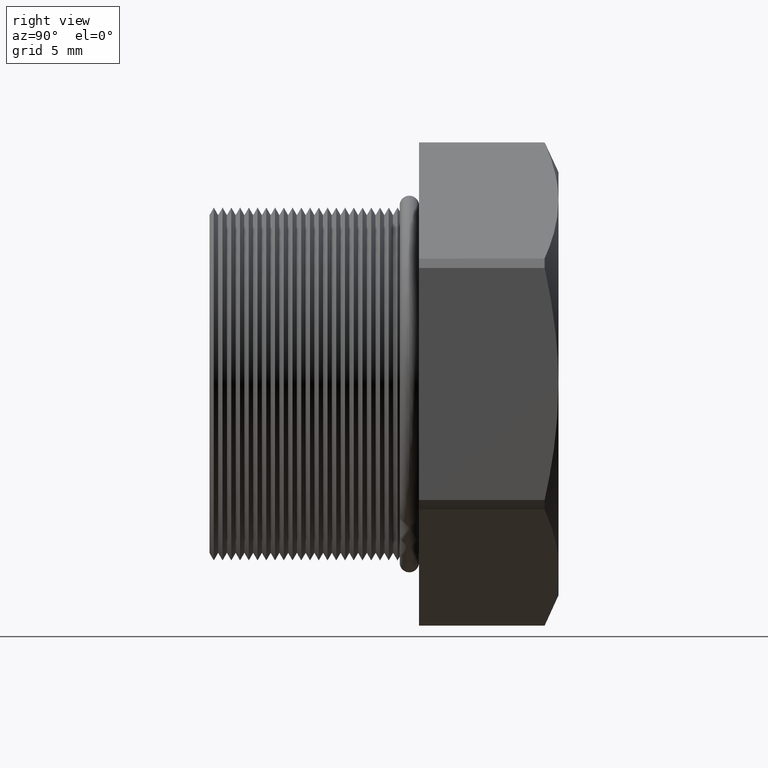
[diagram: clean part render]
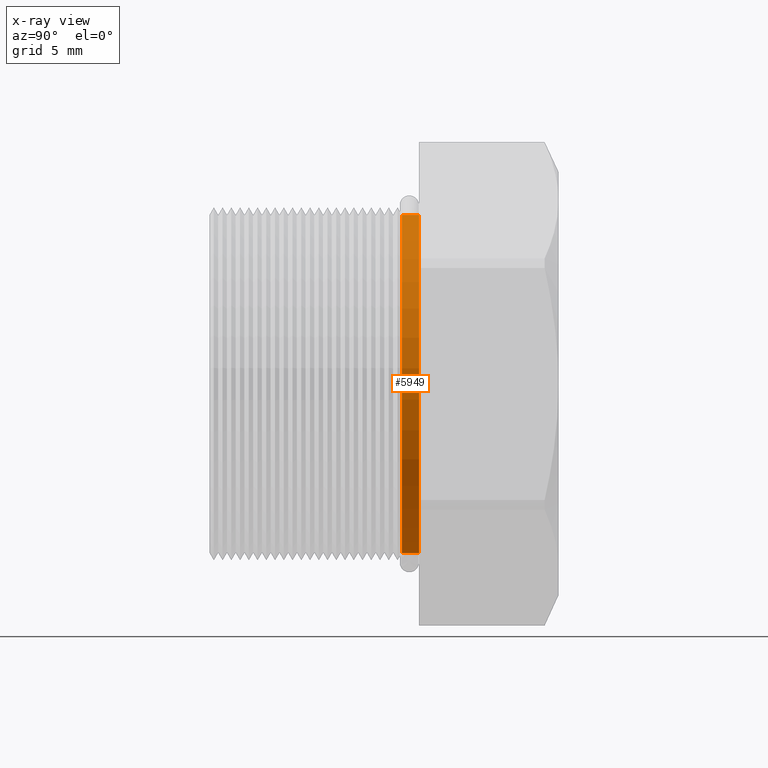
[diagram: x-ray — body ghosted, one internal face saturated and labeled with its STEP entity id]
A machine part, right view, then the same camera in x-ray: the body is ghosted and one INTERNAL B-rep face — a face not visible from any outside direction — is saturated and labeled: STEP entity #5949.
In plain terms, the highlighted cylindrical surface (partial cylindrical patch) has radius 8.001 mm, axis along (-0, -1, -0).
Its self-contained STEP definition (entity closure, byte-faithful):
#5869 = VERTEX_POINT ( 'NONE', #7549 ) ;
#5871 = EDGE_CURVE ( 'NONE', #5869, #5879, #7548, .T. ) ;
#5879 = VERTEX_POINT ( 'NONE', #7588 ) ;
#5944 = VERTEX_POINT ( 'NONE', #7673 ) ;
#5946 = ORIENTED_EDGE ( 'NONE', *, *, #5948, .T. ) ;
#5947 = EDGE_LOOP ( 'NONE', ( #5946, #6025, #6024, #6019 ) ) ;
#5948 = EDGE_CURVE ( 'NONE', #5944, #6027, #7672, .T. ) ;
#5949 = ADVANCED_FACE ( 'NONE', ( #7667 ), #7666, .T. ) ;
#6015 = EDGE_CURVE ( 'NONE', #5944, #5869, #7843, .T. ) ;
#6019 = ORIENTED_EDGE ( 'NONE', *, *, #6015, .F. ) ;
#6024 = ORIENTED_EDGE ( 'NONE', *, *, #5871, .F. ) ;
#6025 = ORIENTED_EDGE ( 'NONE', *, *, #6026, .T. ) ;
#6026 = EDGE_CURVE ( 'NONE', #6027, #5879, #7828, .T. ) ;
#6027 = VERTEX_POINT ( 'NONE', #7824 ) ;
#7544 = DIRECTION ( 'NONE',  ( 0.0000000000000000000, 0.0000000000000000000, -1.000000000000000000 ) ) ;
#7545 = DIRECTION ( 'NONE',  ( 0.0000000000000000000, -1.000000000000000000, 0.0000000000000000000 ) ) ;
#7546 = CARTESIAN_POINT ( 'NONE',  ( 0.0000000000000000000, 0.1155072448100089000, 0.0000000000000000000 ) ) ;
#7547 = AXIS2_PLACEMENT_3D ( 'NONE', #7546, #7545, #7544 ) ;
#7548 = CIRCLE ( 'NONE', #7547, 0.3150000000000000000 ) ;
#7549 = CARTESIAN_POINT ( 'NONE',  ( 0.0000000000000000000, 0.1155072448100089000, -0.3150000000000000000 ) ) ;
#7588 = CARTESIAN_POINT ( 'NONE',  ( 3.857637417314162700E-017, 0.1155072448100089000, 0.3150000000000000000 ) ) ;
#7662 = DIRECTION ( 'NONE',  ( 0.0000000000000000000, 0.0000000000000000000, -1.000000000000000000 ) ) ;
#7663 = DIRECTION ( 'NONE',  ( -0.0000000000000000000, -1.000000000000000000, -0.0000000000000000000 ) ) ;
#7664 = CARTESIAN_POINT ( 'NONE',  ( 0.0000000000000000000, 0.0000000000000000000, 0.0000000000000000000 ) ) ;
#7665 = AXIS2_PLACEMENT_3D ( 'NONE', #7664, #7663, #7662 ) ;
#7666 = CYLINDRICAL_SURFACE ( 'NONE', #7665, 0.3150000000000000000 ) ;
#7667 = FACE_OUTER_BOUND ( 'NONE', #5947, .T. ) ;
#7668 = DIRECTION ( 'NONE',  ( 0.0000000000000000000, 0.0000000000000000000, -1.000000000000000000 ) ) ;
#7669 = DIRECTION ( 'NONE',  ( -0.0000000000000000000, -1.000000000000000000, -0.0000000000000000000 ) ) ;
#7670 = CARTESIAN_POINT ( 'NONE',  ( 0.0000000000000000000, 0.1475548905829479600, 0.0000000000000000000 ) ) ;
#7671 = AXIS2_PLACEMENT_3D ( 'NONE', #7670, #7669, #7668 ) ;
#7672 = CIRCLE ( 'NONE', #7671, 0.3150000000000000000 ) ;
#7673 = CARTESIAN_POINT ( 'NONE',  ( 0.0000000000000000000, 0.1475548905829479600, -0.3150000000000000000 ) ) ;
#7824 = CARTESIAN_POINT ( 'NONE',  ( 3.857637417314162700E-017, 0.1475548905829479600, 0.3150000000000000000 ) ) ;
#7825 = DIRECTION ( 'NONE',  ( -0.0000000000000000000, -1.000000000000000000, -0.0000000000000000000 ) ) ;
#7826 = VECTOR ( 'NONE', #7825, 39.37007874015748100 ) ;
#7827 = CARTESIAN_POINT ( 'NONE',  ( 3.857637417314162700E-017, 0.0000000000000000000, 0.3150000000000000000 ) ) ;
#7828 = LINE ( 'NONE', #7827, #7826 ) ;
#7840 = DIRECTION ( 'NONE',  ( -0.0000000000000000000, -1.000000000000000000, -0.0000000000000000000 ) ) ;
#7841 = VECTOR ( 'NONE', #7840, 39.37007874015748100 ) ;
#7842 = CARTESIAN_POINT ( 'NONE',  ( 0.0000000000000000000, 0.0000000000000000000, -0.3150000000000000000 ) ) ;
#7843 = LINE ( 'NONE', #7842, #7841 ) ;